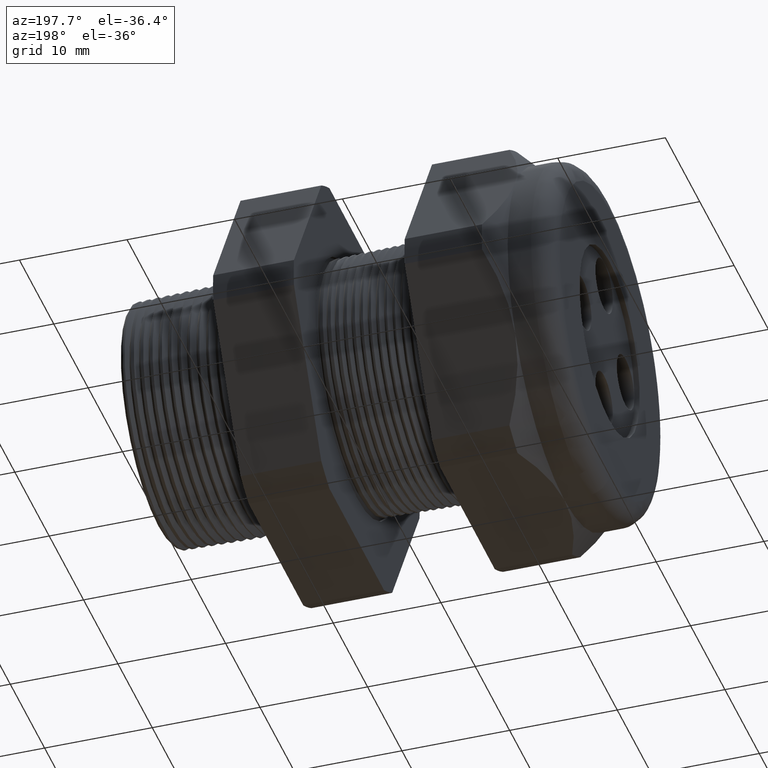
[diagram: clean part render]
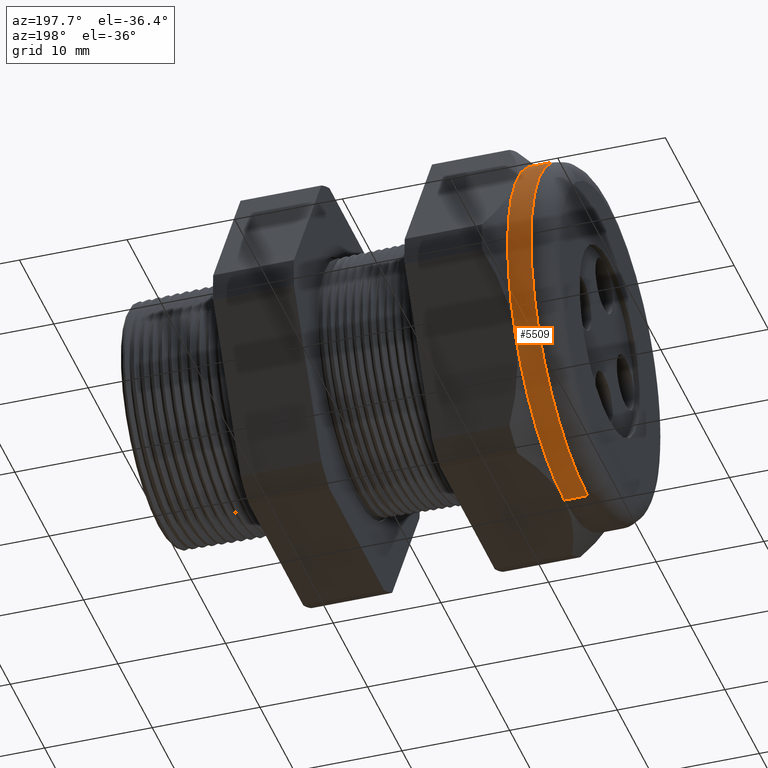
[diagram: same view with one face highlighted and labeled with its STEP entity id]
A machine part, auxiliary view. The second image highlights one B-rep face of the part: STEP entity #5509.
In plain terms, the highlighted cylindrical surface (partial cylindrical patch) has radius 16.51 mm, axis along (1, 0, 0).
Its self-contained STEP definition (entity closure, byte-faithful):
#3712 = DIRECTION ( 'NONE',  ( 0.0000000000000000000, 0.0000000000000000000, -1.000000000000000000 ) ) ;
#3713 = DIRECTION ( 'NONE',  ( 1.000000000000000000, 0.0000000000000000000, 0.0000000000000000000 ) ) ;
#3714 = AXIS2_PLACEMENT_3D ( 'NONE', #3725, #3713, #3712 ) ;
#3723 = CIRCLE ( 'NONE', #3714, 0.6499999999999999100 ) ;
#3725 = CARTESIAN_POINT ( 'NONE',  ( -1.364645669291338200, 0.0000000000000000000, 0.0000000000000000000 ) ) ;
#3726 = CARTESIAN_POINT ( 'NONE',  ( -1.364645669291338500, 0.5629165124598856100, 0.3250000000000002300 ) ) ;
#3761 = DIRECTION ( 'NONE',  ( 0.0000000000000000000, 0.0000000000000000000, -1.000000000000000000 ) ) ;
#3762 = DIRECTION ( 'NONE',  ( 1.000000000000000000, 0.0000000000000000000, 0.0000000000000000000 ) ) ;
#3763 = CARTESIAN_POINT ( 'NONE',  ( -1.364645669291338200, 0.0000000000000000000, 0.0000000000000000000 ) ) ;
#3764 = AXIS2_PLACEMENT_3D ( 'NONE', #3763, #3762, #3761 ) ;
#3765 = CIRCLE ( 'NONE', #3764, 0.6499999999999999100 ) ;
#3766 = CARTESIAN_POINT ( 'NONE',  ( -1.364645669291338500, 0.5629165124598853900, -0.3249999999999999000 ) ) ;
#4298 = ORIENTED_EDGE ( 'NONE', *, *, #5369, .F. ) ;
#4300 = VERTEX_POINT ( 'NONE', #3726 ) ;
#4302 = ORIENTED_EDGE ( 'NONE', *, *, #4308, .F. ) ;
#4303 = ORIENTED_EDGE ( 'NONE', *, *, #4304, .F. ) ;
#4304 = EDGE_CURVE ( 'NONE', #4300, #5505, #3723, .T. ) ;
#4306 = VERTEX_POINT ( 'NONE', #3766 ) ;
#4308 = EDGE_CURVE ( 'NONE', #4306, #4300, #3765, .T. ) ;
#4380 = CARTESIAN_POINT ( 'NONE',  ( -1.364645669291338200, 0.0000000000000000000, 0.0000000000000000000 ) ) ;
#4431 = DIRECTION ( 'NONE',  ( 0.0000000000000000000, 0.0000000000000000000, -1.000000000000000000 ) ) ;
#4432 = DIRECTION ( 'NONE',  ( 1.000000000000000000, 0.0000000000000000000, 0.0000000000000000000 ) ) ;
#4433 = AXIS2_PLACEMENT_3D ( 'NONE', #4380, #4432, #4431 ) ;
#4434 = CIRCLE ( 'NONE', #4433, 0.6499999999999999100 ) ;
#4692 = DIRECTION ( 'NONE',  ( 1.000000000000000000, 0.0000000000000000000, 0.0000000000000000000 ) ) ;
#4693 = VECTOR ( 'NONE', #4692, 39.37007874015748100 ) ;
#4694 = CARTESIAN_POINT ( 'NONE',  ( 0.0000000000000000000, 7.960204194457794200E-017, 0.6499999999999999100 ) ) ;
#4695 = LINE ( 'NONE', #4694, #4693 ) ;
#4696 = DIRECTION ( 'NONE',  ( 0.0000000000000000000, 0.0000000000000000000, -1.000000000000000000 ) ) ;
#4697 = DIRECTION ( 'NONE',  ( 1.000000000000000000, 0.0000000000000000000, 0.0000000000000000000 ) ) ;
#4698 = CARTESIAN_POINT ( 'NONE',  ( 0.0000000000000000000, 0.0000000000000000000, 0.0000000000000000000 ) ) ;
#4699 = AXIS2_PLACEMENT_3D ( 'NONE', #4698, #4697, #4696 ) ;
#4700 = CYLINDRICAL_SURFACE ( 'NONE', #4699, 0.6499999999999999100 ) ;
#4701 = FACE_OUTER_BOUND ( 'NONE', #5510, .T. ) ;
#4714 = CARTESIAN_POINT ( 'NONE',  ( -1.364645669291338500, 0.0000000000000000000, 0.6499999999999999100 ) ) ;
#4762 = CARTESIAN_POINT ( 'NONE',  ( -1.364645669291338500, 0.0000000000000000000, -0.6500000000000001300 ) ) ;
#4763 = DIRECTION ( 'NONE',  ( 1.000000000000000000, 0.0000000000000000000, 0.0000000000000000000 ) ) ;
#4764 = VECTOR ( 'NONE', #4763, 39.37007874015748100 ) ;
#4765 = CARTESIAN_POINT ( 'NONE',  ( 0.0000000000000000000, 0.0000000000000000000, -0.6499999999999999100 ) ) ;
#4766 = LINE ( 'NONE', #4765, #4764 ) ;
#4787 = CARTESIAN_POINT ( 'NONE',  ( -1.449999999999999700, 0.0000000000000000000, -0.6499999999999999100 ) ) ;
#4788 = DIRECTION ( 'NONE',  ( 0.0000000000000000000, 0.0000000000000000000, 1.000000000000000000 ) ) ;
#4789 = DIRECTION ( 'NONE',  ( 1.000000000000000000, 0.0000000000000000000, 0.0000000000000000000 ) ) ;
#4790 = CARTESIAN_POINT ( 'NONE',  ( -1.449999999999999700, 0.0000000000000000000, 0.0000000000000000000 ) ) ;
#4791 = AXIS2_PLACEMENT_3D ( 'NONE', #4790, #4789, #4788 ) ;
#4792 = CIRCLE ( 'NONE', #4791, 0.6499999999999999100 ) ;
#4793 = CARTESIAN_POINT ( 'NONE',  ( -1.449999999999999700, 7.960204194457794200E-017, 0.6499999999999999100 ) ) ;
#5369 = EDGE_CURVE ( 'NONE', #5547, #4306, #4434, .T. ) ;
#5505 = VERTEX_POINT ( 'NONE', #4714 ) ;
#5508 = ORIENTED_EDGE ( 'NONE', *, *, #5569, .T. ) ;
#5509 = ADVANCED_FACE ( 'NONE', ( #4701 ), #4700, .T. ) ;
#5510 = EDGE_LOOP ( 'NONE', ( #5508, #5512, #4303, #4302, #4298, #5528 ) ) ;
#5511 = EDGE_CURVE ( 'NONE', #5566, #5505, #4695, .T. ) ;
#5512 = ORIENTED_EDGE ( 'NONE', *, *, #5511, .T. ) ;
#5528 = ORIENTED_EDGE ( 'NONE', *, *, #5539, .F. ) ;
#5539 = EDGE_CURVE ( 'NONE', #5570, #5547, #4766, .T. ) ;
#5547 = VERTEX_POINT ( 'NONE', #4762 ) ;
#5566 = VERTEX_POINT ( 'NONE', #4793 ) ;
#5569 = EDGE_CURVE ( 'NONE', #5570, #5566, #4792, .T. ) ;
#5570 = VERTEX_POINT ( 'NONE', #4787 ) ;